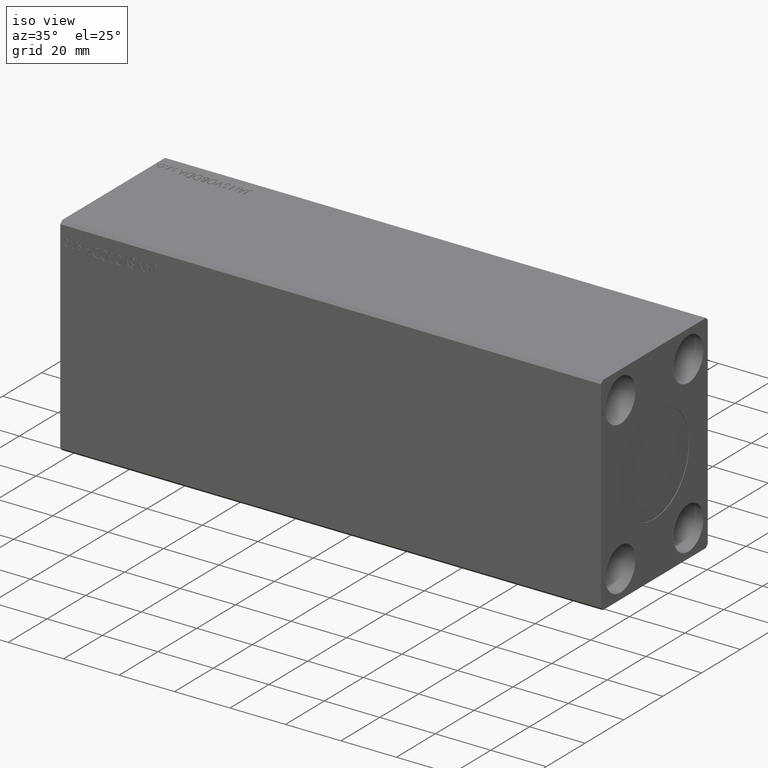
[diagram: clean part render]
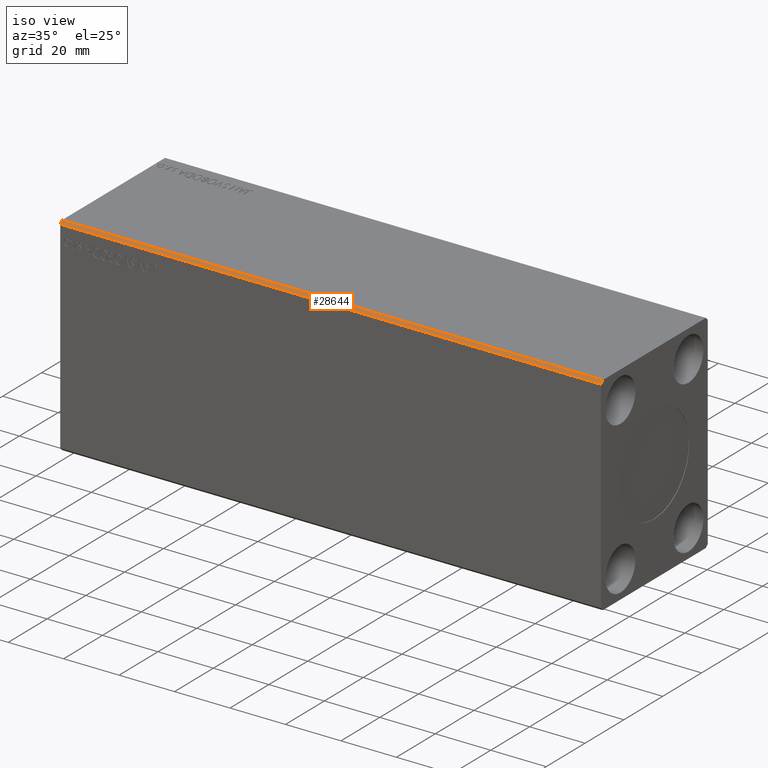
[diagram: same view with one face highlighted and labeled with its STEP entity id]
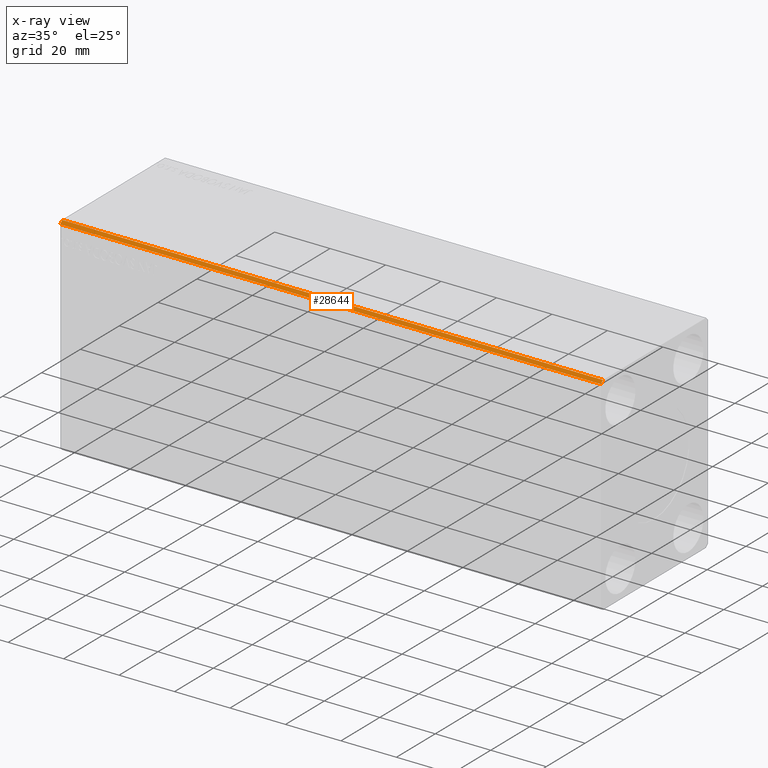
[diagram: x-ray of the same camera — body ghosted, the highlighted face saturated]
A machine part, iso view. The second image highlights one B-rep face of the part: STEP entity #28644.
The next image is the same camera in x-ray: the body ghosted, the highlighted face saturated — about 0% of this face is hidden behind the body in this view.
In plain terms, the highlighted planar face has unit normal (0, 0.7071, -0.7071).
Its self-contained STEP definition (entity closure, byte-faithful):
#1020 = DIRECTION ( 'NONE',  ( -1.000000000000000000, -0.000000000000000000, -0.000000000000000000 ) ) ;
#1218 = LINE ( 'NONE', #4656, #27855 ) ;
#2558 = LINE ( 'NONE', #12902, #18560 ) ;
#3315 = PLANE ( 'NONE',  #17224 ) ;
#4656 = CARTESIAN_POINT ( 'NONE',  ( 195.0000000000000000, -26.50000000000000711, 37.50000000000000711 ) ) ;
#4971 = VECTOR ( 'NONE', #25665, 1000.000000000000000 ) ;
#7353 = CARTESIAN_POINT ( 'NONE',  ( 195.0000000000000000, -27.50000000000000711, 36.50000000000000711 ) ) ;
#7613 = EDGE_CURVE ( 'NONE', #29780, #38268, #12296, .T. ) ;
#9373 = DIRECTION ( 'NONE',  ( 0.000000000000000000, -0.7071067811865474617, -0.7071067811865474617 ) ) ;
#10199 = FACE_OUTER_BOUND ( 'NONE', #14687, .T. ) ;
#10450 = ORIENTED_EDGE ( 'NONE', *, *, #27982, .F. ) ;
#12296 = LINE ( 'NONE', #25025, #4971 ) ;
#12902 = CARTESIAN_POINT ( 'NONE',  ( 195.0000000000000000, -26.50000000000000711, 37.50000000000000711 ) ) ;
#14687 = EDGE_LOOP ( 'NONE', ( #18998, #41634, #10450, #22779 ) ) ;
#15709 = DIRECTION ( 'NONE',  ( 0.000000000000000000, -0.7071067811865474617, -0.7071067811865474617 ) ) ;
#16466 = DIRECTION ( 'NONE',  ( 0.000000000000000000, 0.7071067811865475727, -0.7071067811865475727 ) ) ;
#16646 = VECTOR ( 'NONE', #9373, 1000.000000000000114 ) ;
#16774 = CARTESIAN_POINT ( 'NONE',  ( 195.0000000000000000, -26.50000000000000711, 37.50000000000000711 ) ) ;
#17224 = AXIS2_PLACEMENT_3D ( 'NONE', #20131, #16466, #39539 ) ;
#18560 = VECTOR ( 'NONE', #15709, 1000.000000000000114 ) ;
#18998 = ORIENTED_EDGE ( 'NONE', *, *, #32450, .T. ) ;
#20131 = CARTESIAN_POINT ( 'NONE',  ( 195.0000000000000000, -26.50000000000000711, 37.50000000000000711 ) ) ;
#20335 = EDGE_CURVE ( 'NONE', #42440, #35491, #1218, .T. ) ;
#22525 = LINE ( 'NONE', #41713, #16646 ) ;
#22779 = ORIENTED_EDGE ( 'NONE', *, *, #20335, .T. ) ;
#25025 = CARTESIAN_POINT ( 'NONE',  ( 195.0000000000000000, -27.50000000000000711, 36.50000000000000711 ) ) ;
#25405 = CARTESIAN_POINT ( 'NONE',  ( 0.000000000000000000, -27.50000000000000711, 36.50000000000000711 ) ) ;
#25665 = DIRECTION ( 'NONE',  ( -1.000000000000000000, -0.000000000000000000, -0.000000000000000000 ) ) ;
#27855 = VECTOR ( 'NONE', #1020, 1000.000000000000000 ) ;
#27982 = EDGE_CURVE ( 'NONE', #42440, #29780, #2558, .T. ) ;
#28644 = ADVANCED_FACE ( 'NONE', ( #10199 ), #3315, .F. ) ;
#29780 = VERTEX_POINT ( 'NONE', #7353 ) ;
#30287 = CARTESIAN_POINT ( 'NONE',  ( 0.000000000000000000, -26.50000000000000711, 37.50000000000000711 ) ) ;
#32450 = EDGE_CURVE ( 'NONE', #35491, #38268, #22525, .T. ) ;
#35491 = VERTEX_POINT ( 'NONE', #30287 ) ;
#38268 = VERTEX_POINT ( 'NONE', #25405 ) ;
#39539 = DIRECTION ( 'NONE',  ( 0.000000000000000000, 0.7071067811865474617, 0.7071067811865474617 ) ) ;
#41634 = ORIENTED_EDGE ( 'NONE', *, *, #7613, .F. ) ;
#41713 = CARTESIAN_POINT ( 'NONE',  ( 0.000000000000000000, -26.50000000000000711, 37.50000000000000711 ) ) ;
#42440 = VERTEX_POINT ( 'NONE', #16774 ) ;